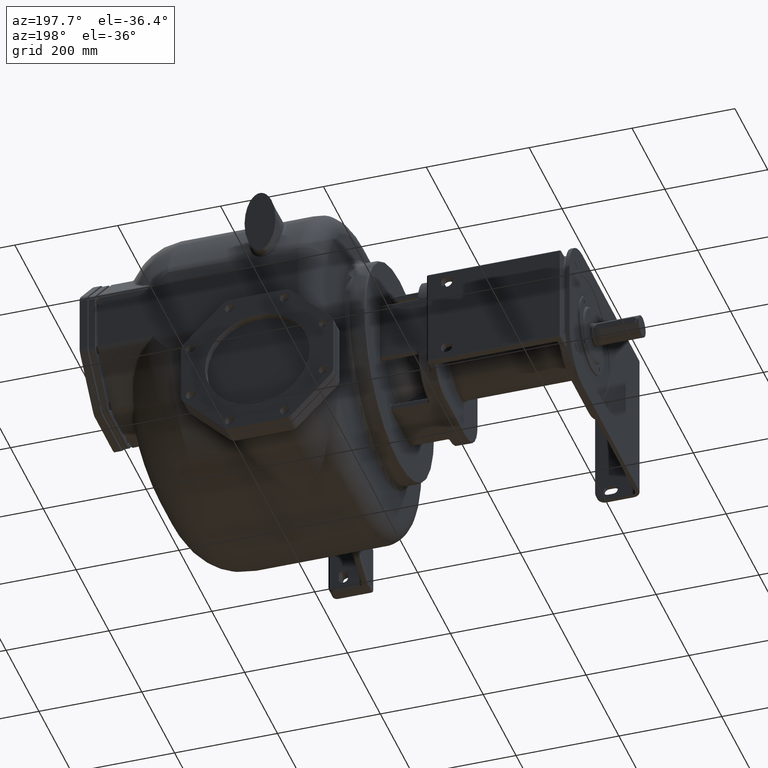
[diagram: clean part render]
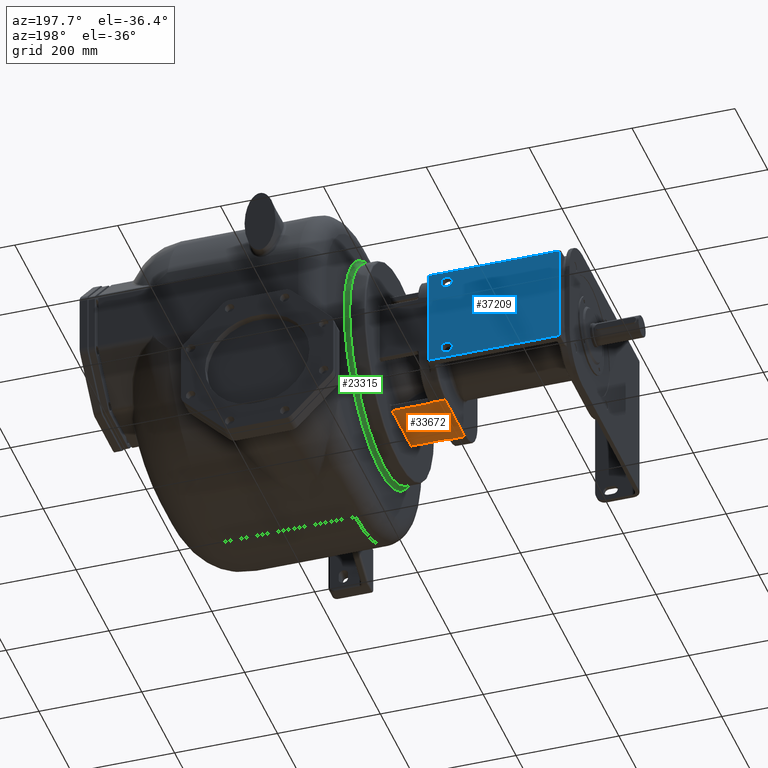
[diagram: same view with three faces highlighted in distinct colors, each labeled with its STEP entity id]
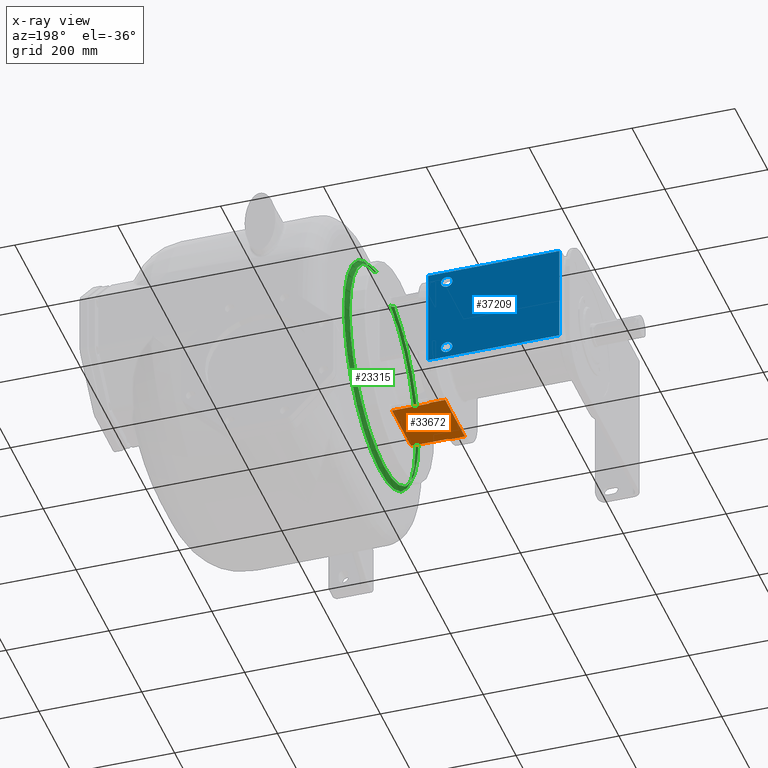
[diagram: x-ray of the same camera — body ghosted, the three highlighted faces saturated]
A machine part, auxiliary view with three faces highlighted in distinct colors.
The next image is the same camera in x-ray (body ghosted, the three faces saturated) — at least one of them is partly hidden behind the body in this view.
Their STEP definitions:

[orange] entity #33672 — the highlighted planar face has unit normal (0, 0, -1).
#13495=DIRECTION('',(0.E0,-1.E0,0.E0));
#13496=VECTOR('',#13495,1.2E2);
#13497=CARTESIAN_POINT('',(-3.08E2,3.7E2,-1.3E2));
#13498=LINE('',#13497,#13496);
#13499=DIRECTION('',(1.E0,-1.243923482738E-12,2.955073625801E-8));
#13500=VECTOR('',#13499,2.999999999998E1);
#13501=CARTESIAN_POINT('',(-3.08E2,2.5E2,-1.3E2));
#13502=LINE('',#13501,#13500);
#13503=CARTESIAN_POINT('',(-2.74E2,2.47E2,-1.3E2));
#13504=DIRECTION('',(0.E0,0.E0,-1.E0));
#13505=DIRECTION('',(-8.E-1,6.E-1,0.E0));
#13506=AXIS2_PLACEMENT_3D('',#13503,#13504,#13505);
#13508=DIRECTION('',(1.E0,-1.335820343229E-13,0.E0));
#13509=VECTOR('',#13508,6.999999999998E1);
#13510=CARTESIAN_POINT('',(-2.74E2,2.52E2,-1.3E2));
#13511=LINE('',#13510,#13509);
#13512=DIRECTION('',(0.E0,-1.E0,0.E0));
#13513=VECTOR('',#13512,1.16E2);
#13514=CARTESIAN_POINT('',(-2.04E2,3.68E2,-1.3E2));
#13515=LINE('',#13514,#13513);
#13516=DIRECTION('',(1.E0,5.197112581559E-14,0.E0));
#13517=VECTOR('',#13516,7.000000000001E1);
#13518=CARTESIAN_POINT('',(-2.74E2,3.68E2,-1.3E2));
#13519=LINE('',#13518,#13517);
#13520=CARTESIAN_POINT('',(-2.74E2,3.73E2,-1.3E2));
#13521=DIRECTION('',(0.E0,0.E0,1.E0));
#13522=DIRECTION('',(-8.E-1,-6.E-1,0.E0));
#13523=AXIS2_PLACEMENT_3D('',#13520,#13521,#13522);
#13535=DIRECTION('',(1.E0,1.506350599813E-12,2.799968304622E-8));
#13536=VECTOR('',#13535,2.999999999997E1);
#13537=CARTESIAN_POINT('',(-3.08E2,3.7E2,-1.3E2));
#13538=LINE('',#13537,#13536);
#20677=CARTESIAN_POINT('',(-2.04E2,3.68E2,-1.3E2));
#20678=CARTESIAN_POINT('',(-2.04E2,2.52E2,-1.3E2));
#20679=VERTEX_POINT('',#20677);
#20680=VERTEX_POINT('',#20678);
#21269=CARTESIAN_POINT('',(-2.78E2,2.5E2,-1.3E2));
#21270=CARTESIAN_POINT('',(-2.74E2,2.52E2,-1.3E2));
#21271=VERTEX_POINT('',#21269);
#21272=VERTEX_POINT('',#21270);
#21277=CARTESIAN_POINT('',(-2.78E2,3.7E2,-1.3E2));
#21278=CARTESIAN_POINT('',(-2.74E2,3.68E2,-1.3E2));
#21279=VERTEX_POINT('',#21277);
#21280=VERTEX_POINT('',#21278);
#21538=CARTESIAN_POINT('',(-3.08E2,3.7E2,-1.3E2));
#21540=VERTEX_POINT('',#21538);
#21543=CARTESIAN_POINT('',(-3.08E2,2.5E2,-1.3E2));
#21544=VERTEX_POINT('',#21543);
#33650=CARTESIAN_POINT('',(-2.77E2,3.7E2,-1.3E2));
#33651=DIRECTION('',(0.E0,0.E0,-1.E0));
#33652=DIRECTION('',(0.E0,-1.E0,0.E0));
#33653=AXIS2_PLACEMENT_3D('',#33650,#33651,#33652);
#33654=PLANE('',#33653);
#33656=ORIENTED_EDGE('',*,*,#33655,.F.);
#33658=ORIENTED_EDGE('',*,*,#33657,.T.);
#33659=ORIENTED_EDGE('',*,*,#33636,.T.);
#33661=ORIENTED_EDGE('',*,*,#33660,.T.);
#33663=ORIENTED_EDGE('',*,*,#33662,.T.);
#33665=ORIENTED_EDGE('',*,*,#33664,.F.);
#33667=ORIENTED_EDGE('',*,*,#33666,.F.);
#33669=ORIENTED_EDGE('',*,*,#33668,.F.);
#33670=EDGE_LOOP('',(#33656,#33658,#33659,#33661,#33663,#33665,#33667,#33669));
#33671=FACE_OUTER_BOUND('',#33670,.F.);
#33672=ADVANCED_FACE('',(#33671),#33654,.T.);
#13507=CIRCLE('',#13506,5.E0);
#13524=CIRCLE('',#13523,5.E0);
#33636=EDGE_CURVE('',#21544,#21271,#13502,.T.);
#33655=EDGE_CURVE('',#21540,#21279,#13538,.T.);
#33657=EDGE_CURVE('',#21540,#21544,#13498,.T.);
#33660=EDGE_CURVE('',#21271,#21272,#13507,.T.);
#33662=EDGE_CURVE('',#21272,#20680,#13511,.T.);
#33664=EDGE_CURVE('',#20679,#20680,#13515,.T.);
#33666=EDGE_CURVE('',#21280,#20679,#13519,.T.);
#33668=EDGE_CURVE('',#21279,#21280,#13524,.T.);

[blue] entity #37209 — the highlighted planar face has unit normal (0, 1, 0).
#16034=DIRECTION('',(0.E0,0.E0,1.E0));
#16035=VECTOR('',#16034,1.94E2);
#16036=CARTESIAN_POINT('',(-5.57E2,4.55E2,-9.7E1));
#16037=LINE('',#16036,#16035);
#16038=CARTESIAN_POINT('',(-3.02E2,4.55E2,-9.7E1));
#16039=CARTESIAN_POINT('',(-3.87E2,4.55E2,-9.7E1));
#16040=CARTESIAN_POINT('',(-4.72E2,4.55E2,-9.7E1));
#16041=CARTESIAN_POINT('',(-5.57E2,4.55E2,-9.7E1));
#16043=DIRECTION('',(0.E0,0.E0,-1.E0));
#16044=VECTOR('',#16043,1.94E2);
#16045=CARTESIAN_POINT('',(-3.02E2,4.55E2,9.7E1));
#16046=LINE('',#16045,#16044);
#16047=CARTESIAN_POINT('',(-5.57E2,4.55E2,9.7E1));
#16048=CARTESIAN_POINT('',(-4.72E2,4.55E2,9.7E1));
#16049=CARTESIAN_POINT('',(-3.87E2,4.55E2,9.7E1));
#16050=CARTESIAN_POINT('',(-3.02E2,4.55E2,9.7E1));
#16052=CARTESIAN_POINT('',(-3.38E2,4.55E2,7.5E1));
#16053=DIRECTION('',(0.E0,1.E0,0.E0));
#16054=DIRECTION('',(-1.E0,0.E0,0.E0));
#16055=AXIS2_PLACEMENT_3D('',#16052,#16053,#16054);
#16057=CARTESIAN_POINT('',(-3.38E2,4.55E2,7.5E1));
#16058=DIRECTION('',(0.E0,1.E0,0.E0));
#16059=DIRECTION('',(1.E0,0.E0,0.E0));
#16060=AXIS2_PLACEMENT_3D('',#16057,#16058,#16059);
#16062=CARTESIAN_POINT('',(-3.38E2,4.55E2,-7.5E1));
#16063=DIRECTION('',(0.E0,1.E0,0.E0));
#16064=DIRECTION('',(-1.E0,0.E0,0.E0));
#16065=AXIS2_PLACEMENT_3D('',#16062,#16063,#16064);
#16067=CARTESIAN_POINT('',(-3.38E2,4.55E2,-7.5E1));
#16068=DIRECTION('',(0.E0,1.E0,0.E0));
#16069=DIRECTION('',(1.E0,0.E0,0.E0));
#16070=AXIS2_PLACEMENT_3D('',#16067,#16068,#16069);
#21553=CARTESIAN_POINT('',(-5.57E2,4.55E2,-9.7E1));
#21554=CARTESIAN_POINT('',(-5.57E2,4.55E2,9.7E1));
#21555=VERTEX_POINT('',#21553);
#21556=VERTEX_POINT('',#21554);
#21561=CARTESIAN_POINT('',(-3.02E2,4.55E2,9.7E1));
#21562=CARTESIAN_POINT('',(-3.02E2,4.55E2,-9.7E1));
#21563=VERTEX_POINT('',#21561);
#21564=VERTEX_POINT('',#21562);
#21714=CARTESIAN_POINT('',(-3.49E2,4.55E2,7.5E1));
#21715=CARTESIAN_POINT('',(-3.27E2,4.55E2,7.5E1));
#21716=VERTEX_POINT('',#21714);
#21717=VERTEX_POINT('',#21715);
#21718=CARTESIAN_POINT('',(-3.49E2,4.55E2,-7.5E1));
#21719=CARTESIAN_POINT('',(-3.27E2,4.55E2,-7.5E1));
#21720=VERTEX_POINT('',#21718);
#21721=VERTEX_POINT('',#21719);
#37184=CARTESIAN_POINT('',(-4.18E2,4.55E2,0.E0));
#37185=DIRECTION('',(0.E0,1.E0,0.E0));
#37186=DIRECTION('',(-1.E0,0.E0,0.E0));
#37187=AXIS2_PLACEMENT_3D('',#37184,#37185,#37186);
#37188=PLANE('',#37187);
#37190=ORIENTED_EDGE('',*,*,#37189,.F.);
#37191=ORIENTED_EDGE('',*,*,#37174,.F.);
#37192=ORIENTED_EDGE('',*,*,#36429,.F.);
#37194=ORIENTED_EDGE('',*,*,#37193,.F.);
#37195=EDGE_LOOP('',(#37190,#37191,#37192,#37194));
#37196=FACE_OUTER_BOUND('',#37195,.F.);
#37198=ORIENTED_EDGE('',*,*,#37197,.T.);
#37200=ORIENTED_EDGE('',*,*,#37199,.T.);
#37201=EDGE_LOOP('',(#37198,#37200));
#37202=FACE_BOUND('',#37201,.F.);
#37204=ORIENTED_EDGE('',*,*,#37203,.T.);
#37206=ORIENTED_EDGE('',*,*,#37205,.T.);
#37207=EDGE_LOOP('',(#37204,#37206));
#37208=FACE_BOUND('',#37207,.F.);
#37209=ADVANCED_FACE('',(#37196,#37202,#37208),#37188,.T.);
#16042=B_SPLINE_CURVE_WITH_KNOTS('',3,(#16038,#16039,#16040,#16041),
.UNSPECIFIED.,.F.,.F.,(4,4),(0.E0,1.E0),.UNSPECIFIED.);
#16051=B_SPLINE_CURVE_WITH_KNOTS('',3,(#16047,#16048,#16049,#16050),
.UNSPECIFIED.,.F.,.F.,(4,4),(0.E0,1.E0),.UNSPECIFIED.);
#16056=CIRCLE('',#16055,1.1E1);
#16061=CIRCLE('',#16060,1.1E1);
#16066=CIRCLE('',#16065,1.1E1);
#16071=CIRCLE('',#16070,1.1E1);
#36429=EDGE_CURVE('',#21563,#21564,#16046,.T.);
#37174=EDGE_CURVE('',#21564,#21555,#16042,.T.);
#37189=EDGE_CURVE('',#21555,#21556,#16037,.T.);
#37193=EDGE_CURVE('',#21556,#21563,#16051,.T.);
#37197=EDGE_CURVE('',#21716,#21717,#16056,.T.);
#37199=EDGE_CURVE('',#21717,#21716,#16061,.T.);
#37203=EDGE_CURVE('',#21720,#21721,#16066,.T.);
#37205=EDGE_CURVE('',#21721,#21720,#16071,.T.);

[green] entity #23315 — the highlighted toroidal blend (fillet) surface has major radius 218 mm and minor (blend) radius 8 mm.
#1409=CARTESIAN_POINT('',(-1.7E2,3.1E2,0.E0));
#1410=DIRECTION('',(-1.E0,0.E0,0.E0));
#1411=DIRECTION('',(0.E0,2.129448511639E-1,9.770642201835E-1));
#1412=AXIS2_PLACEMENT_3D('',#1409,#1410,#1411);
#1482=CARTESIAN_POINT('',(-1.7E2,3.1E2,0.E0));
#1483=DIRECTION('',(-1.E0,0.E0,0.E0));
#1484=DIRECTION('',(0.E0,0.E0,-1.E0));
#1485=AXIS2_PLACEMENT_3D('',#1482,#1483,#1484);
#2180=CARTESIAN_POINT('',(-1.620000002137E2,2.458049913749E2,2.083338668808E2));
#2203=CARTESIAN_POINT('',(-1.699999958963E2,2.458050344578E2,2.083338070533E2));
#2204=DIRECTION('',(-1.577615570396E-9,9.556599785634E-1,2.944724186951E-1));
#2205=DIRECTION('',(9.999999999599E-1,-2.635720498118E-6,8.559138478088E-6));
#2206=AXIS2_PLACEMENT_3D('',#2203,#2204,#2205);
#2208=CARTESIAN_POINT('',(-1.62E2,3.1E2,0.E0));
#2209=DIRECTION('',(1.E0,0.E0,0.E0));
#2210=DIRECTION('',(0.E0,-2.944728288848E-1,9.556598521695E-1));
#2211=AXIS2_PLACEMENT_3D('',#2208,#2209,#2210);
#2213=CARTESIAN_POINT('',(-1.7E2,3.564219775536E2,2.13E2));
#2214=DIRECTION('',(0.E0,9.770642201836E-1,-2.129448511633E-1));
#2215=DIRECTION('',(1.E0,-8.171241461241E-13,-3.744560217456E-12));
#2216=AXIS2_PLACEMENT_3D('',#2213,#2214,#2215);
#20429=CARTESIAN_POINT('',(-1.7E2,3.1E2,-2.1E2));
#20430=CARTESIAN_POINT('',(-1.7E2,2.481607926908E2,2.006885956884E2));
#20431=VERTEX_POINT('',#20429);
#20432=VERTEX_POINT('',#20430);
#20433=CARTESIAN_POINT('',(-1.7E2,3.547184187444E2,2.051834862385E2));
#20434=VERTEX_POINT('',#20433);
#20435=CARTESIAN_POINT('',(-1.620000006727E2,3.564219775537E2,2.13E2));
#20436=VERTEX_POINT('',#20435);
#20499=VERTEX_POINT('',#2180);
#23302=CARTESIAN_POINT('',(-1.7E2,3.1E2,0.E0));
#23303=DIRECTION('',(1.E0,0.E0,0.E0));
#23304=DIRECTION('',(0.E0,1.793783096279E-1,9.837801695679E-1));
#23305=AXIS2_PLACEMENT_3D('',#23302,#23303,#23304);
#23306=TOROIDAL_SURFACE('',#23305,2.18E2,8.E0);
#23307=ORIENTED_EDGE('',*,*,#22701,.T.);
#23308=ORIENTED_EDGE('',*,*,#22725,.T.);
#23309=ORIENTED_EDGE('',*,*,#23295,.F.);
#23310=ORIENTED_EDGE('',*,*,#22812,.T.);
#23312=ORIENTED_EDGE('',*,*,#23311,.T.);
#23313=EDGE_LOOP('',(#23307,#23308,#23309,#23310,#23312));
#23314=FACE_OUTER_BOUND('',#23313,.F.);
#23315=ADVANCED_FACE('',(#23314),#23306,.F.);
#1413=CIRCLE('',#1412,2.1E2);
#1486=CIRCLE('',#1485,2.1E2);
#2207=CIRCLE('',#2206,7.999997370784E0);
#2212=CIRCLE('',#2211,2.18E2);
#2217=CIRCLE('',#2216,8.E0);
#22701=EDGE_CURVE('',#20434,#20431,#1413,.T.);
#22725=EDGE_CURVE('',#20431,#20432,#1486,.T.);
#22812=EDGE_CURVE('',#20499,#20436,#2212,.T.);
#23295=EDGE_CURVE('',#20499,#20432,#2207,.T.);
#23311=EDGE_CURVE('',#20436,#20434,#2217,.T.);